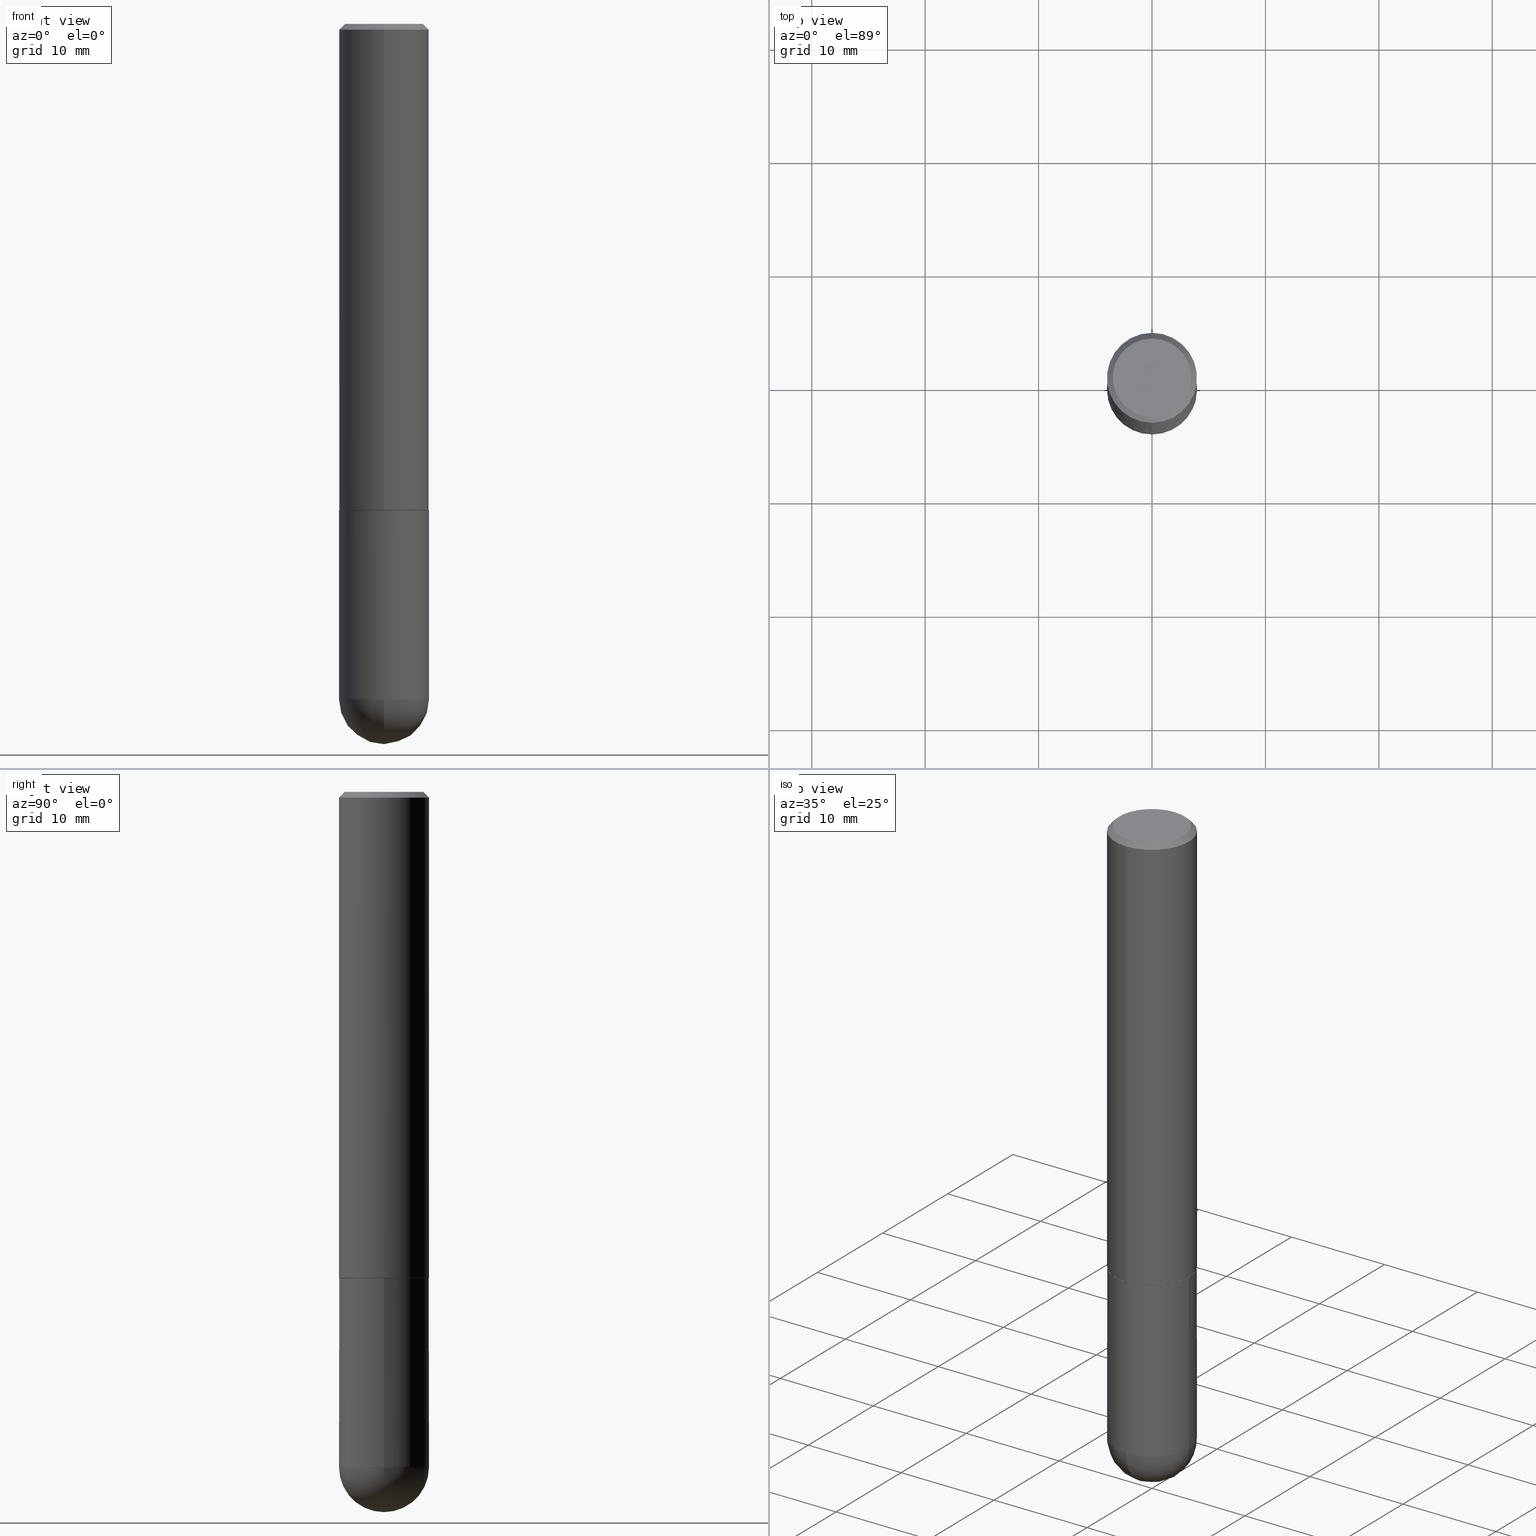
[diagram: canonical four-view strip — front | top / right | iso, engineering-drawing reading convention]
A machine part, canonical four-view strip (front | top / right | iso — engineering-drawing reading convention). The complete STEP part file that produces these views, byte-faithful:
ISO-10303-21;
HEADER;
FILE_DESCRIPTION (( 'STEP AP203' ),
    '1' );
FILE_NAME ('39340.STEP',
    '2024-02-21T19:34:52',
    ( '' ),
    ( '' ),
    'SwSTEP 2.0',
    'SolidWorks 2023',
    '' );
FILE_SCHEMA (( 'CONFIG_CONTROL_DESIGN' ));
ENDSEC;

DATA;
#1 = ORIENTED_EDGE ( 'NONE', *, *, #246, .T. ) ;
#2 = CARTESIAN_POINT ( 'NONE',  ( 5.731567514496413899E-29, -8.183159387913622595E-15, -2.343750000000000000 ) ) ;
#3 = APPROVAL_DATE_TIME ( #258, #147 ) ;
#4 = EDGE_LOOP ( 'NONE', ( #71, #75 ) ) ;
#5 = VERTEX_POINT ( 'NONE', #139 ) ;
#6 = ADVANCED_FACE ( 'NONE', ( #264 ), #339, .F. ) ;
#7 = ORIENTED_EDGE ( 'NONE', *, *, #114, .F. ) ;
#8 = DIRECTION ( 'NONE',  ( 1.000000000000000000, -6.982962677686262766E-15, 0.000000000000000000 ) ) ;
#9 = DIRECTION ( 'NONE',  ( -6.982962677686265922E-15, -1.000000000000000000, 3.519288880726909138E-15 ) ) ;
#10 = DIRECTION ( 'NONE',  ( -2.445468806185136597E-29, 3.491481338843145583E-15, 1.000000000000000000 ) ) ;
#11 = DIRECTION ( 'NONE',  ( -2.445468806185136597E-29, 3.491481338843145583E-15, 1.000000000000000000 ) ) ;
#12 = DIRECTION ( 'NONE',  ( -2.445468806185136597E-29, 3.491481338843145583E-15, 1.000000000000000000 ) ) ;
#13 = VECTOR ( 'NONE', #242, 39.37007874015748143 ) ;
#14 = CARTESIAN_POINT ( 'NONE',  ( -1.084104955710751547E-15, -0.1552500000000059110, -1.687999999999999501 ) ) ;
#15 = LINE ( 'NONE', #277, #13 ) ;
#16 = LINE ( 'NONE', #245, #203 ) ;
#17 = EDGE_CURVE ( 'NONE', #387, #350, #53, .T. ) ;
#18 = AXIS2_PLACEMENT_3D ( 'NONE', #113, #346, #312 ) ;
#19 = SECURITY_CLASSIFICATION ( '', '', #37 ) ;
#20 = CARTESIAN_POINT ( 'NONE',  ( 5.789233224183170584E-29, -9.193318162129576161E-15, -2.500000000000000000 ) ) ;
#21 = CIRCLE ( 'NONE', #118, 0.1562500000000000000 ) ;
#22 = DIRECTION ( 'NONE',  ( -6.982962677686265133E-15, -1.000000000000000000, 3.496765431890256920E-15 ) ) ;
#23 = ADVANCED_FACE ( 'NONE', ( #371 ), #40, .F. ) ;
#24 = CARTESIAN_POINT ( 'NONE',  ( 0.000000000000000000, 0.000000000000000000, 0.000000000000000000 ) ) ;
#25 = LOCAL_TIME ( 14, 34, 52.00000000000000000, #355 ) ;
#26 = CARTESIAN_POINT ( 'NONE',  ( 1.106670310946397649E-15, 0.1552499999999940872, -1.688000000000000611 ) ) ;
#27 = AXIS2_PLACEMENT_3D ( 'NONE', #122, #159, #284 ) ;
#28 = VERTEX_POINT ( 'NONE', #148 ) ;
#29 = DIRECTION ( 'NONE',  ( 1.000000000000000000, -6.982962677686265922E-15, 4.883557194083112340E-29 ) ) ;
#30 = ORIENTED_EDGE ( 'NONE', *, *, #45, .T. ) ;
#31 = DIRECTION ( 'NONE',  ( 6.982962677686265922E-15, 1.000000000000000000, 0.000000000000000000 ) ) ;
#32 = APPROVAL_STATUS ( 'not_yet_approved' ) ;
#33 = ORIENTED_EDGE ( 'NONE', *, *, #179, .F. ) ;
#34 = LOCAL_TIME ( 14, 34, 52.00000000000000000, #237 ) ;
#35 = APPROVAL ( #32, 'UNSPECIFIED' ) ;
#36 = DESIGN_CONTEXT ( 'detailed design', #253, 'design' ) ;
#37 = SECURITY_CLASSIFICATION_LEVEL ( 'unclassified' ) ;
#38 = ORIENTED_EDGE ( 'NONE', *, *, #378, .F. ) ;
#39 = DIRECTION ( 'NONE',  ( 1.000000000000000000, -6.982962677686262766E-15, 0.000000000000000000 ) ) ;
#40 = PLANE ( 'NONE',  #42 ) ;
#41 = FACE_OUTER_BOUND ( 'NONE', #116, .T. ) ;
#42 = AXIS2_PLACEMENT_3D ( 'NONE', #170, #310, #341 ) ;
#43 = VECTOR ( 'NONE', #195, 39.37007874015748143 ) ;
#44 = DIRECTION ( 'NONE',  ( -1.000000000000000000, 6.982962677686265922E-15, -4.883557194083112340E-29 ) ) ;
#45 = EDGE_CURVE ( 'NONE', #214, #28, #16, .T. ) ;
#46 = DIRECTION ( 'NONE',  ( -2.445468806185136597E-29, 3.491481338843145583E-15, 1.000000000000000000 ) ) ;
#47 = DIRECTION ( 'NONE',  ( 2.446082020685559481E-29, -3.490603180776537498E-15, -1.000000000000000000 ) ) ;
#48 = EDGE_CURVE ( 'NONE', #387, #214, #398, .T. ) ;
#49 = ORIENTED_EDGE ( 'NONE', *, *, #305, .F. ) ;
#50 = APPROVAL_STATUS ( 'not_yet_approved' ) ;
#51 = DIRECTION ( 'NONE',  ( -2.445468806185136597E-29, 3.491481338843145583E-15, 1.000000000000000000 ) ) ;
#52 = CARTESIAN_POINT ( 'NONE',  ( 0.000000000000000000, 0.000000000000000000, 0.000000000000000000 ) ) ;
#53 = LINE ( 'NONE', #14, #231 ) ;
#54 = AXIS2_PLACEMENT_3D ( 'NONE', #291, #101, #266 ) ;
#55 = CONICAL_SURFACE ( 'NONE', #134, 0.1552499999999999991, 0.7853981633975165577 ) ;
#56 = DIRECTION ( 'NONE',  ( -2.446082020685560042E-29, 3.490603180776537498E-15, 1.000000000000000000 ) ) ;
#57 = EDGE_CURVE ( 'NONE', #261, #61, #128, .T. ) ;
#58 =( CONVERSION_BASED_UNIT ( 'INCH', #309 ) LENGTH_UNIT ( ) NAMED_UNIT ( #326 ) );
#59 = ADVANCED_FACE ( 'NONE', ( #180 ), #135, .T. ) ;
#60 = PRODUCT_DEFINITION_SHAPE ( 'NONE', 'NONE',  #216 ) ;
#61 = VERTEX_POINT ( 'NONE', #236 ) ;
#62 = PERSON_AND_ORGANIZATION_ROLE ( 'design_owner' ) ;
#63 = CIRCLE ( 'NONE', #294, 0.1562500000000002498 ) ;
#64 = ADVANCED_FACE ( 'NONE', ( #304 ), #169, .T. ) ;
#65 = ORIENTED_EDGE ( 'NONE', *, *, #347, .F. ) ;
#66 = APPLICATION_PROTOCOL_DEFINITION ( 'international standard', 'config_control_design', 1994, #253 ) ;
#67 = EDGE_LOOP ( 'NONE', ( #33, #208, #218, #389 ) ) ;
#68 = ORIENTED_EDGE ( 'NONE', *, *, #246, .F. ) ;
#69 = PERSON_AND_ORGANIZATION ( #320, #154 ) ;
#70 = AXIS2_PLACEMENT_3D ( 'NONE', #369, #51, #233 ) ;
#71 = ORIENTED_EDGE ( 'NONE', *, *, #325, .T. ) ;
#72 = CARTESIAN_POINT ( 'NONE',  ( -0.1562500000000000000, -5.928166919315270321E-15, -2.343750000000000000 ) ) ;
#73 = APPROVAL_DATE_TIME ( #76, #391 ) ;
#74 = CARTESIAN_POINT ( 'NONE',  ( -0.1562500000000000000, 1.110223024625156540E-15, -7.685836078523291160E-30 ) ) ;
#75 = ORIENTED_EDGE ( 'NONE', *, *, #117, .T. ) ;
#76 = DATE_AND_TIME ( #239, #34 ) ;
#77 = ORIENTED_EDGE ( 'NONE', *, *, #114, .T. ) ;
#78 = DIRECTION ( 'NONE',  ( -2.446082020685560042E-29, 3.490603180776537498E-15, 1.000000000000000000 ) ) ;
#79 = AXIS2_PLACEMENT_3D ( 'NONE', #316, #29, #31 ) ;
#80 = AXIS2_PLACEMENT_3D ( 'NONE', #143, #226, #8 ) ;
#81 = LINE ( 'NONE', #207, #43 ) ;
#82 = CARTESIAN_POINT ( 'NONE',  ( 9.514286648347535632E-16, 0.1362499999999999822, -4.585804579386891637E-16 ) ) ;
#83 = EDGE_CURVE ( 'NONE', #350, #28, #107, .T. ) ;
#84 = DIRECTION ( 'NONE',  ( 2.438088387897960049E-29, -3.491481338843145188E-15, -1.000000000000000000 ) ) ;
#85 = LOCAL_TIME ( 14, 34, 52.00000000000000000, #232 ) ;
#86 = CARTESIAN_POINT ( 'NONE',  ( 1.091087918388479568E-15, 0.1562499999999999445, -0.02000000000000057981 ) ) ;
#87 = CARTESIAN_POINT ( 'NONE',  ( 4.128986450917225387E-29, -5.892138169150795047E-15, -1.688000000000000167 ) ) ;
#88 = UNCERTAINTY_MEASURE_WITH_UNIT (LENGTH_MEASURE( 1.000000000000000082E-05 ), #58, 'distance_accuracy_value', 'NONE');
#89 = ADVANCED_FACE ( 'NONE', ( #196 ), #297, .T. ) ;
#90 = CIRCLE ( 'NONE', #321, 0.1562500000000002220 ) ;
#91 = AXIS2_PLACEMENT_3D ( 'NONE', #52, #138, #142 ) ;
#92 = VECTOR ( 'NONE', #401, 39.37007874015748143 ) ;
#93 = PRODUCT_DEFINITION_FORMATION_WITH_SPECIFIED_SOURCE ( 'ANY', '', #408, .NOT_KNOWN. ) ;
#94 = ORIENTED_EDGE ( 'NONE', *, *, #229, .T. ) ;
#95 = ORIENTED_EDGE ( 'NONE', *, *, #189, .F. ) ;
#96 = EDGE_LOOP ( 'NONE', ( #38, #225, #129, #145 ) ) ;
#97 = ADVANCED_FACE ( 'NONE', ( #358 ), #279, .T. ) ;
#98 = VECTOR ( 'NONE', #149, 39.37007874015748143 ) ;
#99 = CIRCLE ( 'NONE', #404, 0.1562500000000000000 ) ;
#100 = CARTESIAN_POINT ( 'NONE',  ( -1.091087918388439336E-15, -0.1562500000000060785, -1.686999999999999611 ) ) ;
#101 = DIRECTION ( 'NONE',  ( -1.000000000000000000, 6.982962677686265922E-15, -4.883557194083112340E-29 ) ) ;
#102 = PRODUCT_RELATED_PRODUCT_CATEGORY ( 'detail', '', ( #408 ) ) ;
#103 = CARTESIAN_POINT ( 'NONE',  ( 1.110223024625157132E-15, 0.1562500000000001110, -5.454067469963343169E-16 ) ) ;
#104 = CARTESIAN_POINT ( 'NONE',  ( 1.091087918388520392E-15, 0.1562499999999940881, -1.688000000000000611 ) ) ;
#105 = FACE_OUTER_BOUND ( 'NONE', #252, .T. ) ;
#106 = PLANE ( 'NONE',  #311 ) ;
#107 = CIRCLE ( 'NONE', #403, 0.1562500000000002220 ) ;
#108 = ORIENTED_EDGE ( 'NONE', *, *, #57, .T. ) ;
#109 = ADVANCED_FACE ( 'NONE', ( #263 ), #106, .F. ) ;
#110 = CYLINDRICAL_SURFACE ( 'NONE', #18, 0.1562500000000001110 ) ;
#111 =( LENGTH_UNIT ( ) NAMED_UNIT ( * ) SI_UNIT ( $, .METRE. ) );
#112 = DIRECTION ( 'NONE',  ( -4.937700262164884886E-15, -0.7071067811865933139, 0.7071067811865017205 ) ) ;
#113 = CARTESIAN_POINT ( 'NONE',  ( 0.000000000000000000, 0.000000000000000000, 0.000000000000000000 ) ) ;
#114 = EDGE_CURVE ( 'NONE', #281, #270, #396, .T. ) ;
#115 = LOCAL_TIME ( 14, 34, 52.00000000000000000, #220 ) ;
#116 = EDGE_LOOP ( 'NONE', ( #188, #77, #412, #288, #94 ) ) ;
#117 = EDGE_CURVE ( 'NONE', #270, #132, #241, .T. ) ;
#118 = AXIS2_PLACEMENT_3D ( 'NONE', #409, #373, #151 ) ;
#119 = PERSON_AND_ORGANIZATION_ROLE ( 'classification_officer' ) ;
#120 = CC_DESIGN_DATE_AND_TIME_ASSIGNMENT ( #187, #348, ( #216 ) ) ;
#121 = ORIENTED_EDGE ( 'NONE', *, *, #17, .T. ) ;
#122 = CARTESIAN_POINT ( 'NONE',  ( -8.323638189969157673E-46, 1.187798188933841525E-31, 3.402845088422792415E-17 ) ) ;
#123 = DIRECTION ( 'NONE',  ( 1.000000000000000000, 0.000000000000000000, 0.000000000000000000 ) ) ;
#124 = ORIENTED_EDGE ( 'NONE', *, *, #83, .F. ) ;
#125 = ADVANCED_BREP_SHAPE_REPRESENTATION ( '39340', ( #181, #184, #274 ), #204 ) ;
#126 = DIRECTION ( 'NONE',  ( -2.445468806185136597E-29, 3.491481338843145583E-15, 1.000000000000000000 ) ) ;
#127 = CC_DESIGN_SECURITY_CLASSIFICATION ( #19, ( #93 ) ) ;
#128 = CIRCLE ( 'NONE', #367, 0.1362499999999999822 ) ;
#129 = ORIENTED_EDGE ( 'NONE', *, *, #229, .F. ) ;
#130 = CALENDAR_DATE ( 2024, 21, 2 ) ;
#131 = EDGE_CURVE ( 'NONE', #5, #201, #172, .T. ) ;
#132 = VERTEX_POINT ( 'NONE', #152 ) ;
#133 = DIRECTION ( 'NONE',  ( -2.446082020685560042E-29, 3.490603180776537498E-15, 1.000000000000000000 ) ) ;
#134 = AXIS2_PLACEMENT_3D ( 'NONE', #399, #165, #202 ) ;
#135 = CYLINDRICAL_SURFACE ( 'NONE', #70, 0.1562500000000000000 ) ;
#136 = EDGE_CURVE ( 'NONE', #28, #350, #90, .T. ) ;
#137 = CARTESIAN_POINT ( 'NONE',  ( -8.323638189969157673E-46, 1.187798188933841525E-31, 3.402845088422792415E-17 ) ) ;
#138 = DIRECTION ( 'NONE',  ( -2.445468806185136597E-29, 3.491481338843145583E-15, 1.000000000000000000 ) ) ;
#139 = CARTESIAN_POINT ( 'NONE',  ( -1.071952812151801215E-15, -0.1562500000000000833, -0.01999999999999948694 ) ) ;
#140 = CARTESIAN_POINT ( 'NONE',  ( 4.128986450917225387E-29, -5.892138169150795047E-15, -1.688000000000000167 ) ) ;
#141 = DIRECTION ( 'NONE',  ( 6.982962677686265133E-15, 1.000000000000000000, -3.496765431890256920E-15 ) ) ;
#142 = DIRECTION ( 'NONE',  ( 1.000000000000000000, -6.982962677686266711E-15, 4.876176775795936353E-29 ) ) ;
#143 = CARTESIAN_POINT ( 'NONE',  ( 5.731567514496413899E-29, -8.183159387913622595E-15, -2.343750000000000000 ) ) ;
#144 = CONICAL_SURFACE ( 'NONE', #332, 0.1552499999999999991, 0.7853981633975165577 ) ;
#145 = ORIENTED_EDGE ( 'NONE', *, *, #250, .F. ) ;
#146 = EDGE_LOOP ( 'NONE', ( #393, #1, #319, #95 ) ) ;
#147 = APPROVAL ( #381, 'UNSPECIFIED' ) ;
#148 = CARTESIAN_POINT ( 'NONE',  ( 1.110223024625178431E-15, 0.1562499999999943379, -1.687000000000000499 ) ) ;
#149 = DIRECTION ( 'NONE',  ( -2.446082020685560042E-29, 3.490603180776537498E-15, 1.000000000000000000 ) ) ;
#150 = AXIS2_PLACEMENT_3D ( 'NONE', #335, #46, #177 ) ;
#151 = DIRECTION ( 'NONE',  ( -6.982962677686265133E-15, -1.000000000000000000, 3.496765431890256920E-15 ) ) ;
#152 = CARTESIAN_POINT ( 'NONE',  ( 0.1562500000000000000, -6.984708418355709513E-15, -1.688000000000000167 ) ) ;
#153 = CIRCLE ( 'NONE', #27, 0.1362499999999999822 ) ;
#154 = ORGANIZATION ( 'UNSPECIFIED', 'UNSPECIFIED', '' ) ;
#155 = ORIENTED_EDGE ( 'NONE', *, *, #337, .F. ) ;
#156 = CARTESIAN_POINT ( 'NONE',  ( -1.110223024625101517E-15, -0.1562500000000085487, -2.343749999999999556 ) ) ;
#157 = DIRECTION ( 'NONE',  ( 0.000000000000000000, 0.000000000000000000, 1.000000000000000000 ) ) ;
#158 = ORIENTED_EDGE ( 'NONE', *, *, #136, .T. ) ;
#159 = DIRECTION ( 'NONE',  ( -2.446082020685560042E-29, 3.490603180776537498E-15, 1.000000000000000000 ) ) ;
#160 = CALENDAR_DATE ( 2024, 21, 2 ) ;
#161 = ORIENTED_EDGE ( 'NONE', *, *, #185, .F. ) ;
#162 = AXIS2_PLACEMENT_3D ( 'NONE', #330, #78, #397 ) ;
#163 = ADVANCED_FACE ( 'NONE', ( #307 ), #110, .T. ) ;
#164 = ORIENTED_EDGE ( 'NONE', *, *, #48, .F. ) ;
#165 = DIRECTION ( 'NONE',  ( -2.446082020685560042E-29, 3.490603180776537498E-15, 1.000000000000000000 ) ) ;
#166 = PERSON_AND_ORGANIZATION ( #320, #154 ) ;
#167 = EDGE_LOOP ( 'NONE', ( #164, #65 ) ) ;
#168 = CC_DESIGN_PERSON_AND_ORGANIZATION_ASSIGNMENT ( #249, #227, ( #216 ) ) ;
#169 = SPHERICAL_SURFACE ( 'NONE', #54, 0.1562500000000002498 ) ;
#170 = CARTESIAN_POINT ( 'NONE',  ( 4.128986450917225387E-29, -5.892138169150795047E-15, -1.688000000000000167 ) ) ;
#171 = CALENDAR_DATE ( 2024, 21, 2 ) ;
#172 = CIRCLE ( 'NONE', #268, 0.1562500000000000000 ) ;
#173 = CARTESIAN_POINT ( 'NONE',  ( 4.892164041371128702E-31, -6.981206361553086139E-17, -0.02000000000000003511 ) ) ;
#174 = ORIENTED_EDGE ( 'NONE', *, *, #250, .T. ) ;
#175 = CARTESIAN_POINT ( 'NONE',  ( -1.003347832174086081E-15, -0.1362499999999999822, 5.096231342650310283E-16 ) ) ;
#176 = DIRECTION ( 'NONE',  ( -2.446082020685560042E-29, 3.490603180776537498E-15, 1.000000000000000000 ) ) ;
#177 = DIRECTION ( 'NONE',  ( 1.000000000000000000, -6.982962677686269077E-15, 0.000000000000000000 ) ) ;
#178 = DIRECTION ( 'NONE',  ( 6.982962677686265922E-15, 1.000000000000000000, -3.490603180776537498E-15 ) ) ;
#179 = EDGE_CURVE ( 'NONE', #261, #5, #15, .T. ) ;
#180 = FACE_OUTER_BOUND ( 'NONE', #286, .T. ) ;
#181 = MANIFOLD_SOLID_BREP ( 'Body-Move/Copy2[1]', #392 ) ;
#182 = DIRECTION ( 'NONE',  ( -6.982962677686265922E-15, -1.000000000000000000, 3.496765431890251792E-15 ) ) ;
#183 = CIRCLE ( 'NONE', #150, 0.1562500000000000000 ) ;
#184 = MANIFOLD_SOLID_BREP ( 'Body-Move/Copy2[2]', #292 ) ;
#185 = EDGE_CURVE ( 'NONE', #201, #5, #21, .T. ) ;
#186 = ORIENTED_EDGE ( 'NONE', *, *, #179, .T. ) ;
#187 = DATE_AND_TIME ( #190, #280 ) ;
#188 = ORIENTED_EDGE ( 'NONE', *, *, #345, .T. ) ;
#189 = EDGE_CURVE ( 'NONE', #350, #5, #342, .T. ) ;
#190 = CALENDAR_DATE ( 2024, 21, 2 ) ;
#191 = ORIENTED_EDGE ( 'NONE', *, *, #131, .T. ) ;
#192 = DATE_AND_TIME ( #160, #25 ) ;
#193 = DIRECTION ( 'NONE',  ( -7.105427357601000281E-15, -1.000000000000000000, 0.000000000000000000 ) ) ;
#194 = ORIENTED_EDGE ( 'NONE', *, *, #48, .T. ) ;
#195 = DIRECTION ( 'NONE',  ( 4.937700262164542520E-15, 0.7071067811865443531, -0.7071067811865506814 ) ) ;
#196 = FACE_OUTER_BOUND ( 'NONE', #370, .T. ) ;
#197 = EDGE_LOOP ( 'NONE', ( #336, #186, #191, #49 ) ) ;
#198 = DIRECTION ( 'NONE',  ( -2.446082020685560042E-29, 3.490603180776537498E-15, 1.000000000000000000 ) ) ;
#199 = DIRECTION ( 'NONE',  ( -2.446082020685560042E-29, 3.490603180776537498E-15, 1.000000000000000000 ) ) ;
#200 = DIRECTION ( 'NONE',  ( 6.982962677686265922E-15, 1.000000000000000000, -3.496765431890251398E-15 ) ) ;
#201 = VERTEX_POINT ( 'NONE', #86 ) ;
#202 = DIRECTION ( 'NONE',  ( -6.982962677686265922E-15, -1.000000000000000000, 3.519288880726909138E-15 ) ) ;
#203 = VECTOR ( 'NONE', #314, 39.37007874015748143 ) ;
#204 =( GEOMETRIC_REPRESENTATION_CONTEXT ( 3 ) GLOBAL_UNCERTAINTY_ASSIGNED_CONTEXT ( ( #88 ) ) GLOBAL_UNIT_ASSIGNED_CONTEXT ( ( #58, #273, #276 ) ) REPRESENTATION_CONTEXT ( 'NONE', 'WORKASPACE' ) );
#205 = VECTOR ( 'NONE', #374, 39.37007874015748143 ) ;
#206 = VERTEX_POINT ( 'NONE', #20 ) ;
#207 = CARTESIAN_POINT ( 'NONE',  ( 1.091087918388479568E-15, 0.1562499999999999445, -0.02000000000000057981 ) ) ;
#208 = ORIENTED_EDGE ( 'NONE', *, *, #224, .F. ) ;
#209 = SHAPE_DEFINITION_REPRESENTATION ( #60, #125 ) ;
#210 = CIRCLE ( 'NONE', #80, 0.1562500000000000000 ) ;
#211 = EDGE_CURVE ( 'NONE', #385, #132, #275, .T. ) ;
#212 = AXIS2_PLACEMENT_3D ( 'NONE', #173, #299, #141 ) ;
#213 = CARTESIAN_POINT ( 'NONE',  ( 4.126540368896540526E-29, -5.888647565970019255E-15, -1.687000000000000055 ) ) ;
#214 = VERTEX_POINT ( 'NONE', #26 ) ;
#215 = DIRECTION ( 'NONE',  ( -6.982962677686265922E-15, -1.000000000000000000, 3.519288880726909138E-15 ) ) ;
#216 = PRODUCT_DEFINITION ( 'UNKNOWN', '', #93, #36 ) ;
#217 = COORDINATED_UNIVERSAL_TIME_OFFSET ( 5, 0, .BEHIND. ) ;
#218 = ORIENTED_EDGE ( 'NONE', *, *, #305, .T. ) ;
#219 = AXIS2_PLACEMENT_3D ( 'NONE', #362, #44, #200 ) ;
#220 = COORDINATED_UNIVERSAL_TIME_OFFSET ( 5, 0, .BEHIND. ) ;
#221 = APPLICATION_PROTOCOL_DEFINITION ( 'international standard', 'config_control_design', 1994, #407 ) ;
#222 = EDGE_CURVE ( 'NONE', #206, #306, #251, .T. ) ;
#223 = VERTEX_POINT ( 'NONE', #156 ) ;
#224 = EDGE_CURVE ( 'NONE', #61, #261, #153, .T. ) ;
#225 = ORIENTED_EDGE ( 'NONE', *, *, #222, .T. ) ;
#226 = DIRECTION ( 'NONE',  ( -2.445468806185136597E-29, 3.491481338843145583E-15, 1.000000000000000000 ) ) ;
#227 = PERSON_AND_ORGANIZATION_ROLE ( 'creator' ) ;
#228 = ORIENTED_EDGE ( 'NONE', *, *, #224, .T. ) ;
#229 = EDGE_CURVE ( 'NONE', #385, #306, #410, .T. ) ;
#230 = CARTESIAN_POINT ( 'NONE',  ( -0.1562500000000000000, -5.928166919315269532E-15, -1.688000000000000167 ) ) ;
#231 = VECTOR ( 'NONE', #112, 39.37007874015748143 ) ;
#232 = COORDINATED_UNIVERSAL_TIME_OFFSET ( 5, 0, .BEHIND. ) ;
#233 = DIRECTION ( 'NONE',  ( 1.000000000000000000, -6.982962677686266711E-15, 4.876176775795936353E-29 ) ) ;
#234 = ORIENTED_EDGE ( 'NONE', *, *, #17, .F. ) ;
#235 = CARTESIAN_POINT ( 'NONE',  ( 5.400447736582527652E-29, -8.657341756053672891E-15, -2.343750000000000000 ) ) ;
#236 = CARTESIAN_POINT ( 'NONE',  ( 1.021258291611616664E-15, 0.1362499999999999822, -4.415662324965752417E-16 ) ) ;
#237 = COORDINATED_UNIVERSAL_TIME_OFFSET ( 5, 0, .BEHIND. ) ;
#238 = DIRECTION ( 'NONE',  ( -2.446082020685560042E-29, 3.490603180776537498E-15, 1.000000000000000000 ) ) ;
#239 = CALENDAR_DATE ( 2024, 21, 2 ) ;
#240 = EDGE_LOOP ( 'NONE', ( #317, #353, #155, #289 ) ) ;
#241 = CIRCLE ( 'NONE', #376, 0.1562500000000000000 ) ;
#242 = DIRECTION ( 'NONE',  ( -4.851104656540958753E-15, -0.7071067811865492381, -0.7071067811865457964 ) ) ;
#243 = AXIS2_PLACEMENT_3D ( 'NONE', #267, #133, #354 ) ;
#244 = DIRECTION ( 'NONE',  ( -2.446082020685560042E-29, 3.490603180776537498E-15, 1.000000000000000000 ) ) ;
#245 = CARTESIAN_POINT ( 'NONE',  ( 1.103117597267596553E-15, 0.1552499999999940872, -1.688000000000000611 ) ) ;
#246 = EDGE_CURVE ( 'NONE', #28, #201, #351, .T. ) ;
#247 = APPROVAL_PERSON_ORGANIZATION ( #69, #147, #411 ) ;
#248 = CARTESIAN_POINT ( 'NONE',  ( 0.1562500000000000000, -8.129477862328905246E-15, -2.343750000000000000 ) ) ;
#249 = PERSON_AND_ORGANIZATION ( #320, #154 ) ;
#250 = EDGE_CURVE ( 'NONE', #223, #385, #99, .T. ) ;
#251 = CIRCLE ( 'NONE', #79, 0.1562500000000002498 ) ;
#252 = EDGE_LOOP ( 'NONE', ( #382, #331, #121, #300 ) ) ;
#253 = APPLICATION_CONTEXT ( 'configuration controlled 3d designs of mechanical parts and assemblies' ) ;
#254 = VECTOR ( 'NONE', #198, 39.37007874015748143 ) ;
#255 = DIRECTION ( 'NONE',  ( 1.000000000000000000, -6.982962677686262766E-15, 0.000000000000000000 ) ) ;
#256 = PERSON_AND_ORGANIZATION ( #320, #154 ) ;
#257 = ORIENTED_EDGE ( 'NONE', *, *, #117, .F. ) ;
#258 = DATE_AND_TIME ( #130, #115 ) ;
#259 = FACE_OUTER_BOUND ( 'NONE', #96, .T. ) ;
#260 = DATE_AND_TIME ( #171, #85 ) ;
#261 = VERTEX_POINT ( 'NONE', #175 ) ;
#262 = CIRCLE ( 'NONE', #243, 0.1552499999999999991 ) ;
#263 = FACE_OUTER_BOUND ( 'NONE', #360, .T. ) ;
#264 = FACE_OUTER_BOUND ( 'NONE', #4, .T. ) ;
#265 = ADVANCED_FACE ( 'NONE', ( #105 ), #55, .T. ) ;
#266 = DIRECTION ( 'NONE',  ( 6.982962677686265922E-15, 1.000000000000000000, -3.496765431890251398E-15 ) ) ;
#267 = CARTESIAN_POINT ( 'NONE',  ( 4.128986450917225387E-29, -5.892138169150795047E-15, -1.688000000000000167 ) ) ;
#268 = AXIS2_PLACEMENT_3D ( 'NONE', #405, #244, #22 ) ;
#269 = DIRECTION ( 'NONE',  ( -6.982962677686265922E-15, -1.000000000000000000, 3.490603180776537498E-15 ) ) ;
#270 = VERTEX_POINT ( 'NONE', #230 ) ;
#271 = ADVANCED_FACE ( 'NONE', ( #293 ), #144, .T. ) ;
#272 = DIRECTION ( 'NONE',  ( 1.000000000000000000, -6.982962677686269077E-15, 0.000000000000000000 ) ) ;
#273 =( NAMED_UNIT ( * ) PLANE_ANGLE_UNIT ( ) SI_UNIT ( $, .RADIAN. ) );
#274 = AXIS2_PLACEMENT_3D ( 'NONE', #24, #157, #123 ) ;
#275 = LINE ( 'NONE', #406, #205 ) ;
#276 =( NAMED_UNIT ( * ) SI_UNIT ( $, .STERADIAN. ) SOLID_ANGLE_UNIT ( ) );
#277 = CARTESIAN_POINT ( 'NONE',  ( -1.071952812151801215E-15, -0.1562500000000000833, -0.01999999999999948694 ) ) ;
#278 = ADVANCED_FACE ( 'NONE', ( #290 ), #303, .T. ) ;
#279 = CONICAL_SURFACE ( 'NONE', #212, 0.1562500000000000000, 0.7853981633974472798 ) ;
#280 = LOCAL_TIME ( 14, 34, 52.00000000000000000, #217 ) ;
#281 = VERTEX_POINT ( 'NONE', #72 ) ;
#282 = MECHANICAL_CONTEXT ( 'NONE', #407, 'mechanical' ) ;
#283 = ORIENTED_EDGE ( 'NONE', *, *, #211, .T. ) ;
#284 = DIRECTION ( 'NONE',  ( -6.982962677686265922E-15, -1.000000000000000000, 3.490603180776537498E-15 ) ) ;
#285 = APPROVAL_DATE_TIME ( #192, #35 ) ;
#286 = EDGE_LOOP ( 'NONE', ( #7, #296, #174, #283, #257 ) ) ;
#287 = PERSON_AND_ORGANIZATION ( #320, #154 ) ;
#288 = ORIENTED_EDGE ( 'NONE', *, *, #211, .F. ) ;
#289 = ORIENTED_EDGE ( 'NONE', *, *, #345, .F. ) ;
#290 = FACE_OUTER_BOUND ( 'NONE', #197, .T. ) ;
#291 = CARTESIAN_POINT ( 'NONE',  ( 5.400447736582527652E-29, -8.657341756053672891E-15, -2.343750000000000000 ) ) ;
#292 = CLOSED_SHELL ( 'NONE', ( #271, #163, #278, #97, #89, #265, #23, #109 ) ) ;
#293 = FACE_OUTER_BOUND ( 'NONE', #327, .T. ) ;
#294 = AXIS2_PLACEMENT_3D ( 'NONE', #235, #343, #193 ) ;
#295 = CC_DESIGN_PERSON_AND_ORGANIZATION_ASSIGNMENT ( #256, #352, ( #93 ) ) ;
#296 = ORIENTED_EDGE ( 'NONE', *, *, #337, .T. ) ;
#297 = CYLINDRICAL_SURFACE ( 'NONE', #162, 0.1562500000000001110 ) ;
#298 = CARTESIAN_POINT ( 'NONE',  ( 5.731567514496413899E-29, -8.183159387913622595E-15, -2.343750000000000000 ) ) ;
#299 = DIRECTION ( 'NONE',  ( 2.446082020685560042E-29, -3.490603180776537498E-15, -1.000000000000000000 ) ) ;
#300 = ORIENTED_EDGE ( 'NONE', *, *, #136, .F. ) ;
#301 = CC_DESIGN_DATE_AND_TIME_ASSIGNMENT ( #260, #333, ( #19 ) ) ;
#302 = AXIS2_PLACEMENT_3D ( 'NONE', #87, #344, #215 ) ;
#303 = CONICAL_SURFACE ( 'NONE', #377, 0.1562500000000000000, 0.7853981633974472798 ) ;
#304 = FACE_OUTER_BOUND ( 'NONE', #240, .T. ) ;
#305 = EDGE_CURVE ( 'NONE', #61, #201, #81, .T. ) ;
#306 = VERTEX_POINT ( 'NONE', #328 ) ;
#307 = FACE_OUTER_BOUND ( 'NONE', #146, .T. ) ;
#308 = CARTESIAN_POINT ( 'NONE',  ( -1.091087918388479765E-15, -0.1562500000000001110, 5.454067469963343169E-16 ) ) ;
#309 = LENGTH_MEASURE_WITH_UNIT ( LENGTH_MEASURE( 0.02539999999999999897 ), #111 );
#310 = DIRECTION ( 'NONE',  ( -2.446082020685559481E-29, 3.490603180776537498E-15, 1.000000000000000000 ) ) ;
#311 = AXIS2_PLACEMENT_3D ( 'NONE', #82, #47, #178 ) ;
#312 = DIRECTION ( 'NONE',  ( -6.982962677686265922E-15, -1.000000000000000000, 3.490603180776537104E-15 ) ) ;
#313 = APPROVAL_PERSON_ORGANIZATION ( #400, #391, #357 ) ;
#314 = DIRECTION ( 'NONE',  ( 5.024295867788404755E-15, 0.7071067811865981989, 0.7071067811864968355 ) ) ;
#315 = CC_DESIGN_APPROVAL ( #391, ( #19 ) ) ;
#316 = CARTESIAN_POINT ( 'NONE',  ( 5.400447736582527652E-29, -8.657341756053672891E-15, -2.343750000000000000 ) ) ;
#317 = ORIENTED_EDGE ( 'NONE', *, *, #222, .F. ) ;
#318 = PERSON_AND_ORGANIZATION ( #320, #154 ) ;
#319 = ORIENTED_EDGE ( 'NONE', *, *, #131, .F. ) ;
#320 = PERSON ( 'UNSPECIFIED', 'UNSPECIFIED', 'UNSPECIFIED', ('UNSPECIFIED'), ('UNSPECIFIED'), ('UNSPECIFIED') ) ;
#321 = AXIS2_PLACEMENT_3D ( 'NONE', #213, #56, #182 ) ;
#322 = ORIENTED_EDGE ( 'NONE', *, *, #189, .T. ) ;
#323 = AXIS2_PLACEMENT_3D ( 'NONE', #2, #126, #255 ) ;
#324 = PERSON_AND_ORGANIZATION_ROLE ( 'design_supplier' ) ;
#325 = EDGE_CURVE ( 'NONE', #132, #270, #183, .T. ) ;
#326 = DIMENSIONAL_EXPONENTS ( 1.000000000000000000, 0.000000000000000000, 0.000000000000000000, 0.000000000000000000, 0.000000000000000000, 0.000000000000000000, 0.000000000000000000 ) ;
#327 = EDGE_LOOP ( 'NONE', ( #194, #30, #124, #234 ) ) ;
#328 = CARTESIAN_POINT ( 'NONE',  ( 1.091087918388535577E-15, 0.1562499999999916733, -2.343750000000000444 ) ) ;
#329 = CARTESIAN_POINT ( 'NONE',  ( 5.731567514496413899E-29, -8.183159387913622595E-15, -2.343750000000000000 ) ) ;
#330 = CARTESIAN_POINT ( 'NONE',  ( 0.000000000000000000, 0.000000000000000000, 0.000000000000000000 ) ) ;
#331 = ORIENTED_EDGE ( 'NONE', *, *, #347, .T. ) ;
#332 = AXIS2_PLACEMENT_3D ( 'NONE', #140, #238, #9 ) ;
#333 = DATE_TIME_ROLE ( 'classification_date' ) ;
#334 = SPHERICAL_SURFACE ( 'NONE', #219, 0.1562500000000002498 ) ;
#335 = CARTESIAN_POINT ( 'NONE',  ( 4.127951344840510809E-29, -5.893620499967230340E-15, -1.688000000000000167 ) ) ;
#336 = ORIENTED_EDGE ( 'NONE', *, *, #57, .F. ) ;
#337 = EDGE_CURVE ( 'NONE', #281, #223, #372, .T. ) ;
#338 = CARTESIAN_POINT ( 'NONE',  ( 4.127951344840510809E-29, -5.893620499967230340E-15, -1.688000000000000167 ) ) ;
#339 = PLANE ( 'NONE',  #386 ) ;
#340 = CC_DESIGN_APPROVAL ( #147, ( #216 ) ) ;
#341 = DIRECTION ( 'NONE',  ( -6.982962677686265922E-15, -1.000000000000000000, 3.490603180776537498E-15 ) ) ;
#342 = LINE ( 'NONE', #308, #98 ) ;
#343 = DIRECTION ( 'NONE',  ( -1.000000000000000000, 7.105427357601001070E-15, -4.926315508542082329E-29 ) ) ;
#344 = DIRECTION ( 'NONE',  ( -2.446082020685560042E-29, 3.490603180776537498E-15, 1.000000000000000000 ) ) ;
#345 = EDGE_CURVE ( 'NONE', #306, #281, #210, .T. ) ;
#346 = DIRECTION ( 'NONE',  ( -2.446082020685560042E-29, 3.490603180776537498E-15, 1.000000000000000000 ) ) ;
#347 = EDGE_CURVE ( 'NONE', #214, #387, #262, .T. ) ;
#348 = DATE_TIME_ROLE ( 'creation_date' ) ;
#349 = CC_DESIGN_APPROVAL ( #35, ( #93 ) ) ;
#350 = VERTEX_POINT ( 'NONE', #100 ) ;
#351 = LINE ( 'NONE', #103, #254 ) ;
#352 = PERSON_AND_ORGANIZATION_ROLE ( 'creator' ) ;
#353 = ORIENTED_EDGE ( 'NONE', *, *, #378, .T. ) ;
#354 = DIRECTION ( 'NONE',  ( -6.982962677686265922E-15, -1.000000000000000000, 3.519288880726909138E-15 ) ) ;
#355 = COORDINATED_UNIVERSAL_TIME_OFFSET ( 5, 0, .BEHIND. ) ;
#356 = DIRECTION ( 'NONE',  ( 2.446082020685560042E-29, -3.490603180776537498E-15, -1.000000000000000000 ) ) ;
#357 = APPROVAL_ROLE ( '' ) ;
#358 = FACE_OUTER_BOUND ( 'NONE', #67, .T. ) ;
#359 = CC_DESIGN_PERSON_AND_ORGANIZATION_ASSIGNMENT ( #166, #119, ( #19 ) ) ;
#360 = EDGE_LOOP ( 'NONE', ( #228, #108 ) ) ;
#361 = CARTESIAN_POINT ( 'NONE',  ( 4.126540368896540526E-29, -5.888647565970019255E-15, -1.687000000000000055 ) ) ;
#362 = CARTESIAN_POINT ( 'NONE',  ( 5.400447736582527652E-29, -8.657341756053672891E-15, -2.343750000000000000 ) ) ;
#363 = DIRECTION ( 'NONE',  ( 6.982962677686265133E-15, 1.000000000000000000, -3.496765431890256920E-15 ) ) ;
#364 = DIRECTION ( 'NONE',  ( -6.982962677686265922E-15, -1.000000000000000000, 3.496765431890251792E-15 ) ) ;
#365 = DIRECTION ( 'NONE',  ( -1.000000000000000000, 6.982962677686265922E-15, -4.876176775795935793E-29 ) ) ;
#366 = CARTESIAN_POINT ( 'NONE',  ( 4.892164041371128702E-31, -6.981206361553086139E-17, -0.02000000000000003511 ) ) ;
#367 = AXIS2_PLACEMENT_3D ( 'NONE', #137, #176, #269 ) ;
#368 = CYLINDRICAL_SURFACE ( 'NONE', #91, 0.1562500000000000000 ) ;
#369 = CARTESIAN_POINT ( 'NONE',  ( 0.000000000000000000, 0.000000000000000000, 0.000000000000000000 ) ) ;
#370 = EDGE_LOOP ( 'NONE', ( #68, #158, #322, #161 ) ) ;
#371 = FACE_OUTER_BOUND ( 'NONE', #167, .T. ) ;
#372 = CIRCLE ( 'NONE', #384, 0.1562500000000000000 ) ;
#373 = DIRECTION ( 'NONE',  ( -2.446082020685560042E-29, 3.490603180776537498E-15, 1.000000000000000000 ) ) ;
#374 = DIRECTION ( 'NONE',  ( -2.445468806185136877E-29, 3.491481338843145188E-15, 1.000000000000000000 ) ) ;
#375 = CC_DESIGN_PERSON_AND_ORGANIZATION_ASSIGNMENT ( #287, #324, ( #93 ) ) ;
#376 = AXIS2_PLACEMENT_3D ( 'NONE', #338, #10, #272 ) ;
#377 = AXIS2_PLACEMENT_3D ( 'NONE', #366, #356, #363 ) ;
#378 = EDGE_CURVE ( 'NONE', #206, #223, #63, .T. ) ;
#379 = APPROVAL_ROLE ( '' ) ;
#380 = CARTESIAN_POINT ( 'NONE',  ( -1.084104955710751547E-15, -0.1552500000000059110, -1.687999999999999501 ) ) ;
#381 = APPROVAL_STATUS ( 'not_yet_approved' ) ;
#382 = ORIENTED_EDGE ( 'NONE', *, *, #45, .F. ) ;
#383 = PERSON_AND_ORGANIZATION ( #320, #154 ) ;
#384 = AXIS2_PLACEMENT_3D ( 'NONE', #298, #12, #39 ) ;
#385 = VERTEX_POINT ( 'NONE', #248 ) ;
#386 = AXIS2_PLACEMENT_3D ( 'NONE', #104, #84, #365 ) ;
#387 = VERTEX_POINT ( 'NONE', #380 ) ;
#388 = CC_DESIGN_PERSON_AND_ORGANIZATION_ASSIGNMENT ( #383, #62, ( #408 ) ) ;
#389 = ORIENTED_EDGE ( 'NONE', *, *, #185, .T. ) ;
#390 = DIRECTION ( 'NONE',  ( 1.000000000000000000, -6.982962677686262766E-15, 0.000000000000000000 ) ) ;
#391 = APPROVAL ( #50, 'UNSPECIFIED' ) ;
#392 = CLOSED_SHELL ( 'NONE', ( #402, #64, #395, #6, #59 ) ) ;
#393 = ORIENTED_EDGE ( 'NONE', *, *, #83, .T. ) ;
#394 = APPROVAL_PERSON_ORGANIZATION ( #318, #35, #379 ) ;
#395 = ADVANCED_FACE ( 'NONE', ( #259 ), #334, .T. ) ;
#396 = LINE ( 'NONE', #74, #92 ) ;
#397 = DIRECTION ( 'NONE',  ( -6.982962677686265922E-15, -1.000000000000000000, 3.490603180776537104E-15 ) ) ;
#398 = CIRCLE ( 'NONE', #302, 0.1552499999999999991 ) ;
#399 = CARTESIAN_POINT ( 'NONE',  ( 4.128986450917225387E-29, -5.892138169150795047E-15, -1.688000000000000167 ) ) ;
#400 = PERSON_AND_ORGANIZATION ( #320, #154 ) ;
#401 = DIRECTION ( 'NONE',  ( -2.445468806185136877E-29, 3.491481338843145188E-15, 1.000000000000000000 ) ) ;
#402 = ADVANCED_FACE ( 'NONE', ( #41 ), #368, .T. ) ;
#403 = AXIS2_PLACEMENT_3D ( 'NONE', #361, #199, #364 ) ;
#404 = AXIS2_PLACEMENT_3D ( 'NONE', #329, #11, #390 ) ;
#405 = CARTESIAN_POINT ( 'NONE',  ( 4.892164041371128702E-31, -6.981206361553086139E-17, -0.02000000000000003511 ) ) ;
#406 = CARTESIAN_POINT ( 'NONE',  ( 0.1562500000000000000, -1.091087918388479174E-15, 7.619026212181150377E-30 ) ) ;
#407 = APPLICATION_CONTEXT ( 'configuration controlled 3d designs of mechanical parts and assemblies' ) ;
#408 = PRODUCT ( '39340', '39340', '', ( #282 ) ) ;
#409 = CARTESIAN_POINT ( 'NONE',  ( 4.892164041371128702E-31, -6.981206361553086139E-17, -0.02000000000000003511 ) ) ;
#410 = CIRCLE ( 'NONE', #323, 0.1562500000000000000 ) ;
#411 = APPROVAL_ROLE ( '' ) ;
#412 = ORIENTED_EDGE ( 'NONE', *, *, #325, .F. ) ;
ENDSEC;
END-ISO-10303-21;
